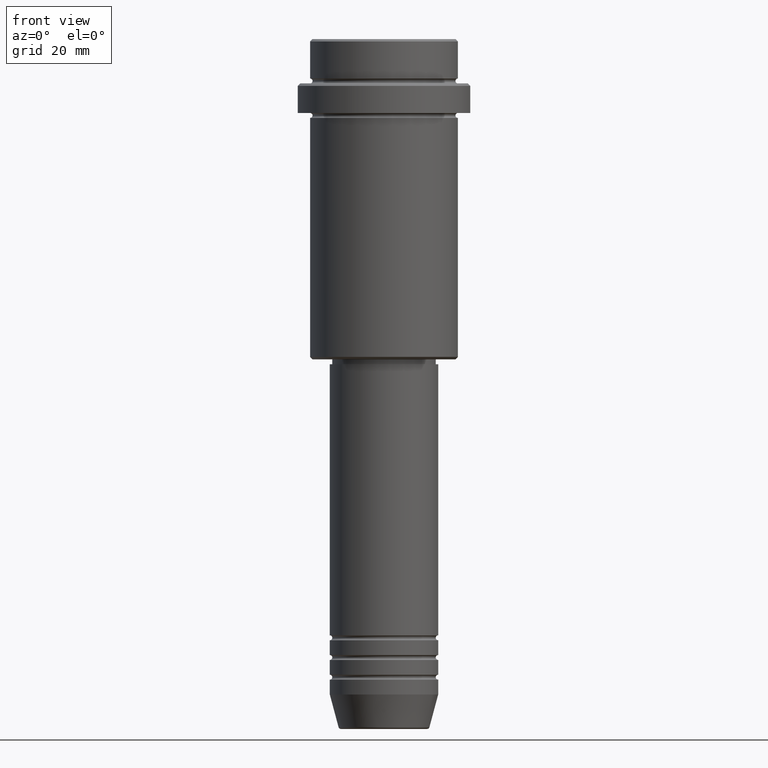
[diagram: clean part render]
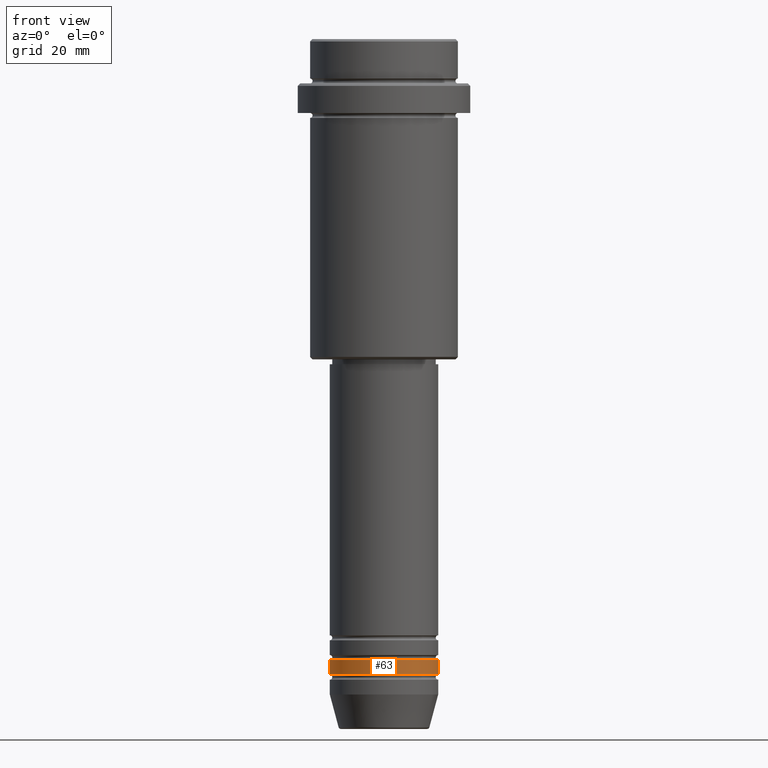
[diagram: same view with one face highlighted and labeled with its STEP entity id]
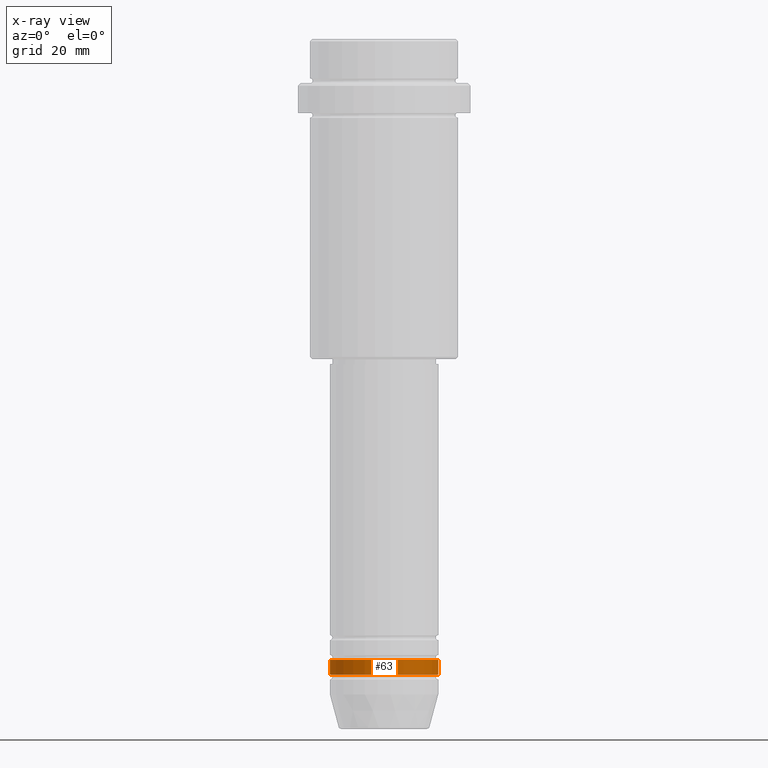
[diagram: x-ray of the same camera — body ghosted, the highlighted face saturated]
A machine part, front view. The second image highlights one B-rep face of the part: STEP entity #63.
The next image is the same camera in x-ray: the body ghosted, the highlighted face saturated — about 0% of this face is hidden behind the body in this view.
In plain terms, the highlighted cylindrical surface (partial cylindrical patch) has radius 11 mm, axis along (-0, -0, 1).
Its self-contained STEP definition (entity closure, byte-faithful):
#44 = DIRECTION ( 'NONE',  ( -0.000000000000000000, -0.000000000000000000, 1.000000000000000000 ) ) ;
#63 = ADVANCED_FACE ( 'NONE', ( #1184 ), #406, .T. ) ;
#103 = DIRECTION ( 'NONE',  ( -0.000000000000000000, -0.000000000000000000, 1.000000000000000000 ) ) ;
#106 = CARTESIAN_POINT ( 'NONE',  ( -11.00000000000000000, 1.347111479062088405E-15, -125.9999999999998863 ) ) ;
#157 = LINE ( 'NONE', #487, #1183 ) ;
#217 = ORIENTED_EDGE ( 'NONE', *, *, #817, .T. ) ;
#238 = CARTESIAN_POINT ( 'NONE',  ( -11.00000000000000000, 1.347111479062088405E-15, -128.9999999999998863 ) ) ;
#260 = CARTESIAN_POINT ( 'NONE',  ( -11.00000000000000000, 1.347111479062088405E-15, 0.000000000000000000 ) ) ;
#269 = DIRECTION ( 'NONE',  ( -0.000000000000000000, -0.000000000000000000, 1.000000000000000000 ) ) ;
#278 = EDGE_LOOP ( 'NONE', ( #1340, #217, #1150, #1082 ) ) ;
#308 = CARTESIAN_POINT ( 'NONE',  ( 0.000000000000000000, 0.000000000000000000, 0.000000000000000000 ) ) ;
#312 = CARTESIAN_POINT ( 'NONE',  ( 11.00000000000000000, 0.000000000000000000, -128.9999999999998863 ) ) ;
#383 = DIRECTION ( 'NONE',  ( -0.000000000000000000, -0.000000000000000000, 1.000000000000000000 ) ) ;
#406 = CYLINDRICAL_SURFACE ( 'NONE', #1335, 11.00000000000000000 ) ;
#482 = CARTESIAN_POINT ( 'NONE',  ( 0.000000000000000000, 0.000000000000000000, -128.9999999999998863 ) ) ;
#487 = CARTESIAN_POINT ( 'NONE',  ( 11.00000000000000000, 0.000000000000000000, 0.000000000000000000 ) ) ;
#502 = VERTEX_POINT ( 'NONE', #312 ) ;
#667 = CIRCLE ( 'NONE', #1207, 11.00000000000000000 ) ;
#670 = VERTEX_POINT ( 'NONE', #106 ) ;
#777 = AXIS2_PLACEMENT_3D ( 'NONE', #482, #383, #1053 ) ;
#817 = EDGE_CURVE ( 'NONE', #1339, #502, #1205, .T. ) ;
#1030 = LINE ( 'NONE', #260, #1177 ) ;
#1042 = DIRECTION ( 'NONE',  ( 1.000000000000000000, 0.000000000000000000, 0.000000000000000000 ) ) ;
#1053 = DIRECTION ( 'NONE',  ( 1.000000000000000000, 0.000000000000000000, 0.000000000000000000 ) ) ;
#1082 = ORIENTED_EDGE ( 'NONE', *, *, #1369, .F. ) ;
#1099 = CARTESIAN_POINT ( 'NONE',  ( 11.00000000000000000, 0.000000000000000000, -125.9999999999998863 ) ) ;
#1121 = CARTESIAN_POINT ( 'NONE',  ( 0.000000000000000000, 0.000000000000000000, -125.9999999999998863 ) ) ;
#1150 = ORIENTED_EDGE ( 'NONE', *, *, #1318, .T. ) ;
#1177 = VECTOR ( 'NONE', #269, 1000.000000000000000 ) ;
#1183 = VECTOR ( 'NONE', #1242, 1000.000000000000000 ) ;
#1184 = FACE_OUTER_BOUND ( 'NONE', #278, .T. ) ;
#1205 = CIRCLE ( 'NONE', #777, 11.00000000000000000 ) ;
#1207 = AXIS2_PLACEMENT_3D ( 'NONE', #1121, #44, #1042 ) ;
#1219 = VERTEX_POINT ( 'NONE', #1099 ) ;
#1242 = DIRECTION ( 'NONE',  ( -0.000000000000000000, -0.000000000000000000, 1.000000000000000000 ) ) ;
#1304 = EDGE_CURVE ( 'NONE', #1339, #670, #1030, .T. ) ;
#1318 = EDGE_CURVE ( 'NONE', #502, #1219, #157, .T. ) ;
#1335 = AXIS2_PLACEMENT_3D ( 'NONE', #308, #103, #1393 ) ;
#1339 = VERTEX_POINT ( 'NONE', #238 ) ;
#1340 = ORIENTED_EDGE ( 'NONE', *, *, #1304, .F. ) ;
#1369 = EDGE_CURVE ( 'NONE', #670, #1219, #667, .T. ) ;
#1393 = DIRECTION ( 'NONE',  ( 1.000000000000000000, 0.000000000000000000, 0.000000000000000000 ) ) ;